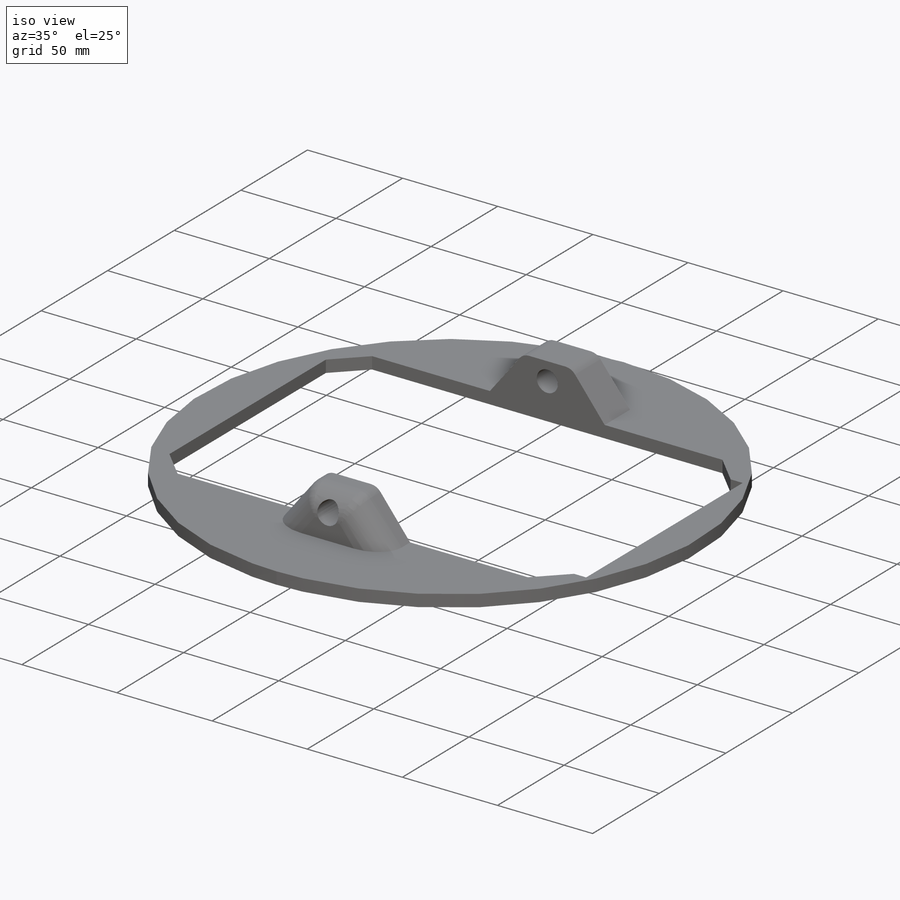
[diagram: iso view]
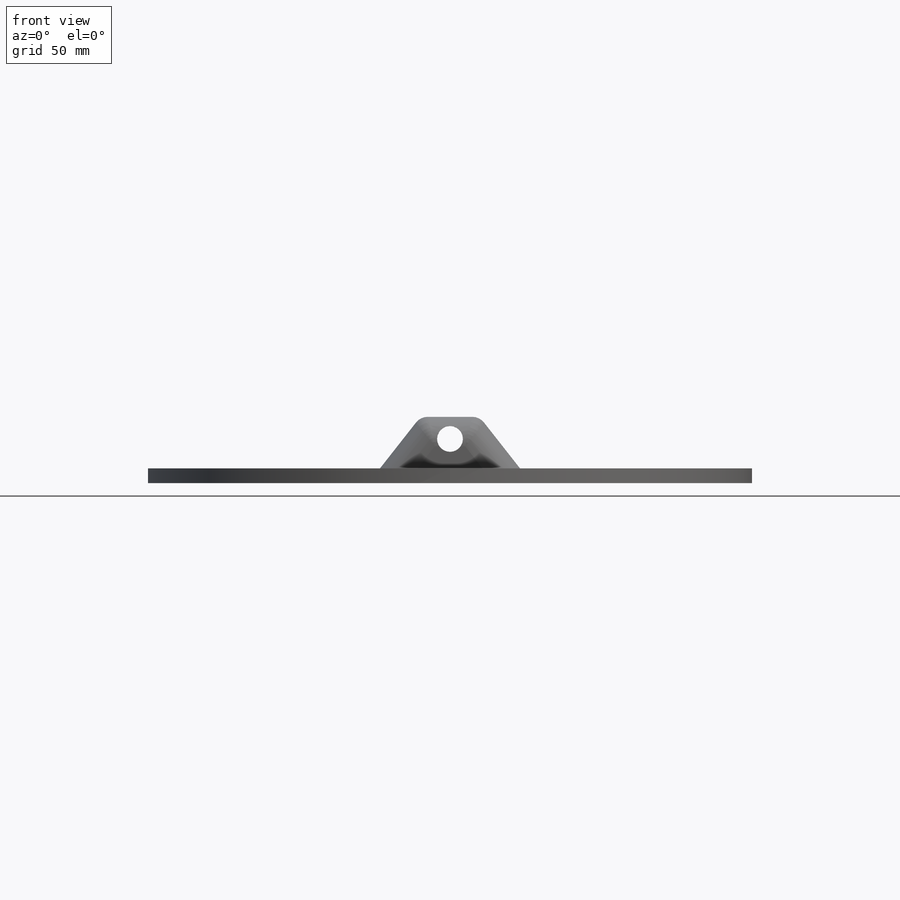
[diagram: front view]
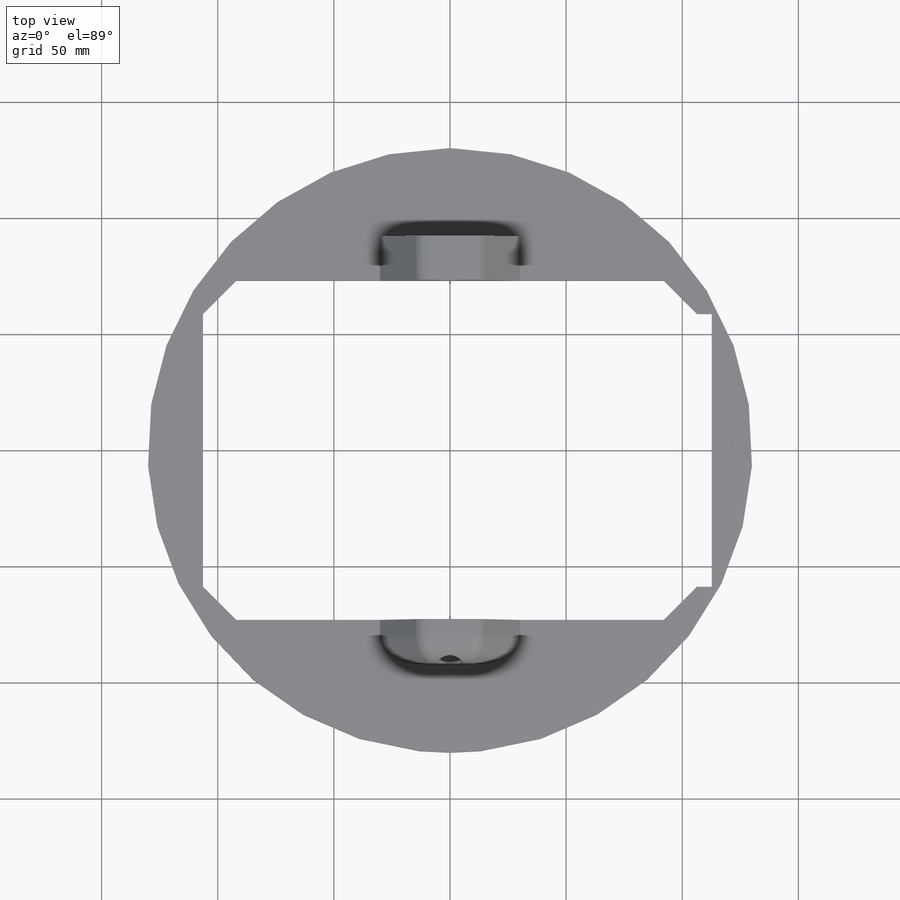
[diagram: top view]
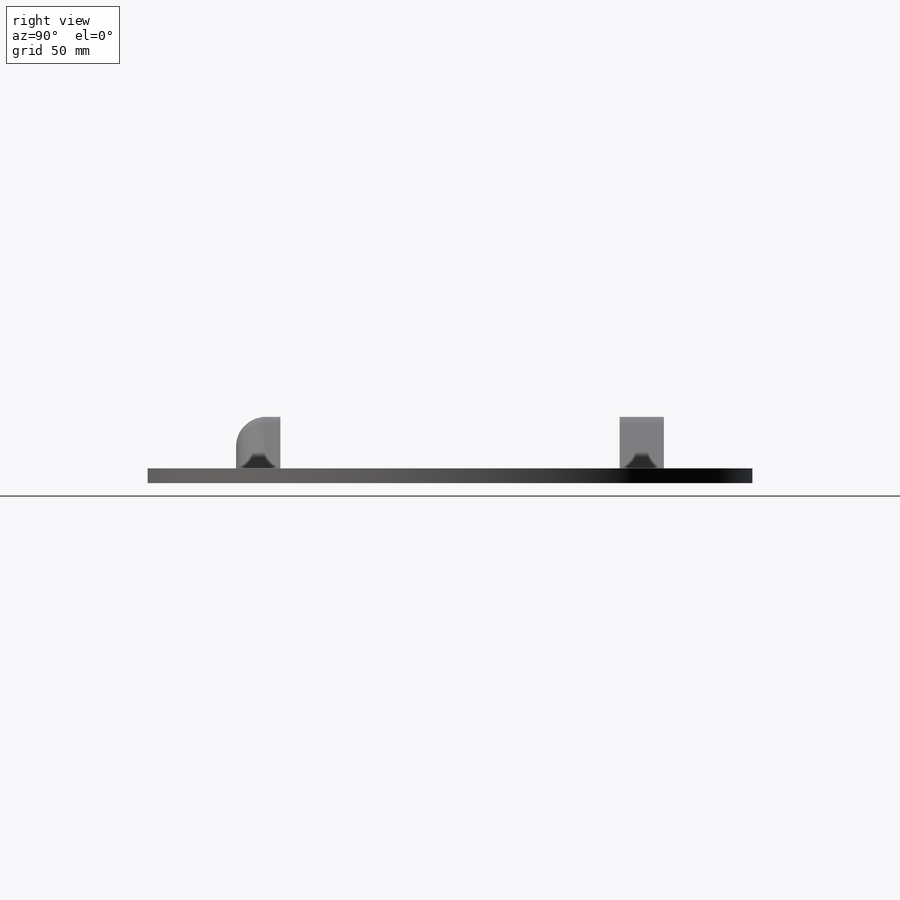
[diagram: right view]
SOLIDWORKS PART (.sldprt)
format: sldprt  version: not decoded by parser v0  size: 240,128 bytes
history: native  units: mm
features: sketch x4, extrude x2, cut_extrude x2, material x1, mirror x1, fillet x1 (+14 scaffold rows collapsed)
feature tree (25):
  scaffold x14  (default folders/planes/origin — collapsed)
  material  "Material <not specified>"
  sketch  "Sketch1"  dims[D1=260.35mm]
  extrude  "Boss-Extrude1"  Depth=6.35mm
  sketch  "Sketch2"  dims[D1=212.725mm chamfer_cutout=14.2875mm D4=45.0deg D6=45.0deg D8=45.0deg D10=45.0deg D11=~116.74333mm]
  cut_extrude  "Cut-Extrude1"  [1 undecoded]
  sketch  "Sketch3"  dims[c1.D2=11.1125mm c1.D5=11.1125mm c1.D6=6.35mm c1.D1=9.525mm c1.D3=127.0mm c1.D4=9.525mm c2.D5=45.0deg c2.D6=9.525mm c2.D7=45.0deg c2.D1=~14.248006mm c3.D1=45.0deg c3.D5=12.7mm c4.D1=12.7mm c4.D3=60.325mm c4.D4=25.4mm c4.D5=22.225mm]
  extrude  "Boss-Extrude2"  Depth=19.05mm
  mirror  "Mirror1"
  sketch  "Sketch4"  dims[D1=6.35mm]
  cut_extrude  "Cut-Extrude2"  [1 undecoded]
  fillet  "Fillet1"  Radius=12.7mm
decode coverage: 7 of 10 modeling features carry decoded parameters
note: ~ marks probable driven/reference dimensions
note: 2 parameter values undecoded
note: suppression state not decoded; provenance and decode notes live in map.json
